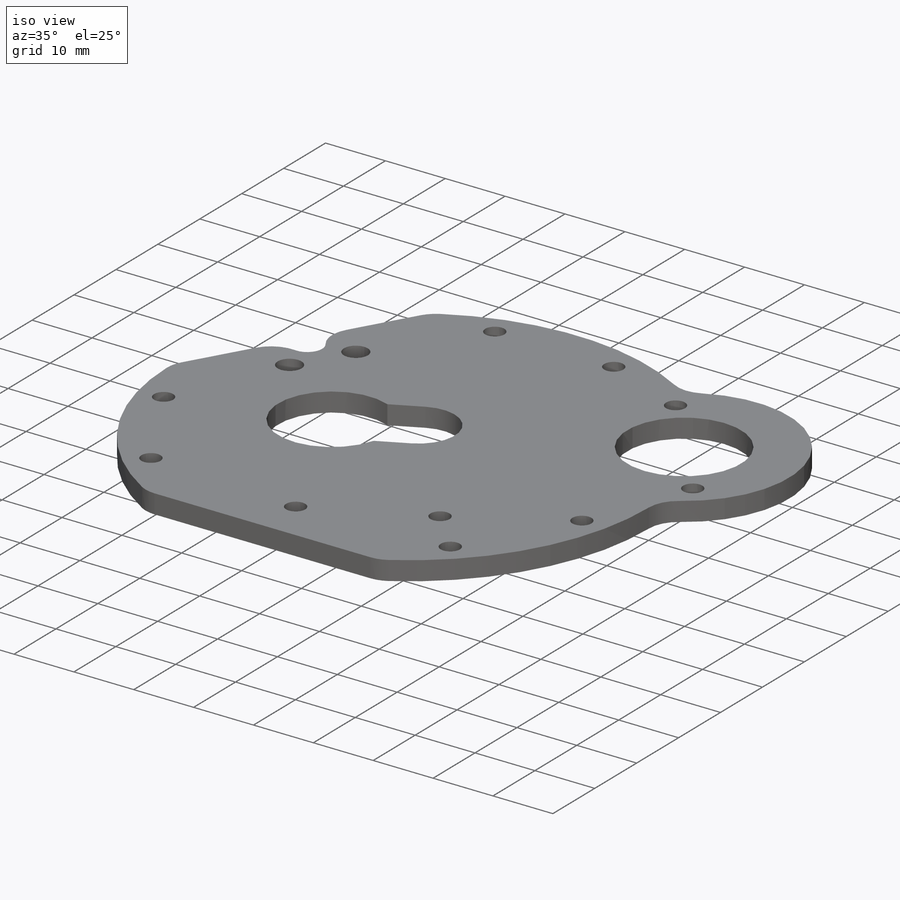
[diagram: iso view]
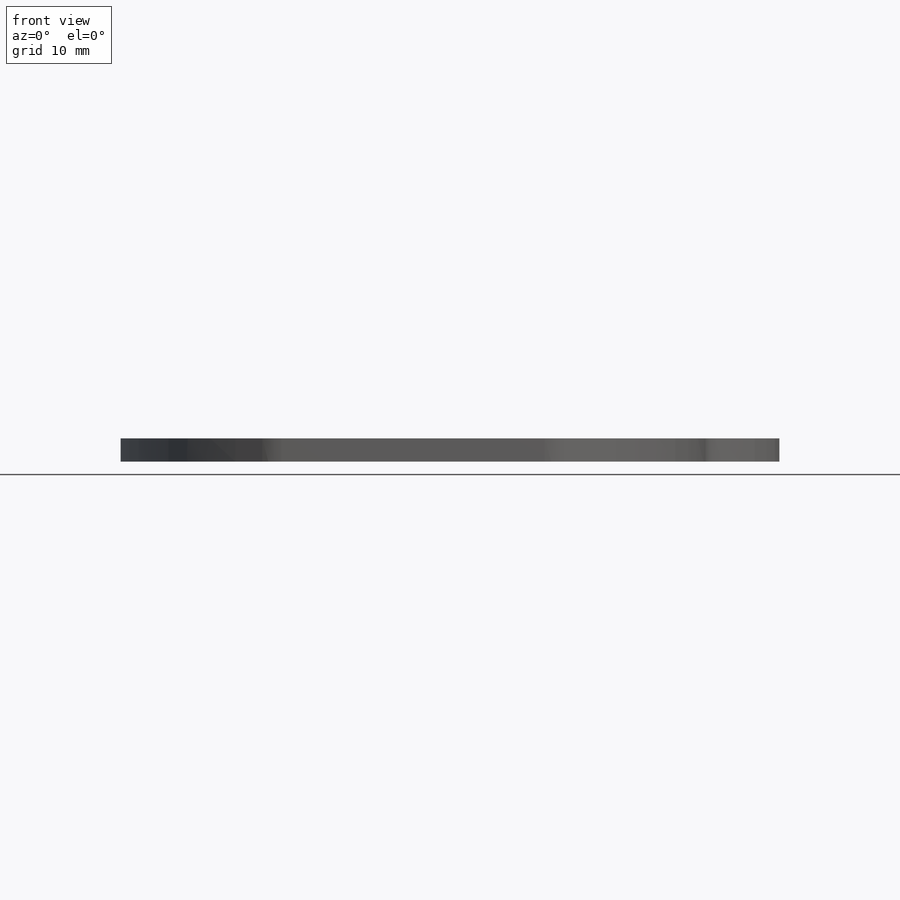
[diagram: front view]
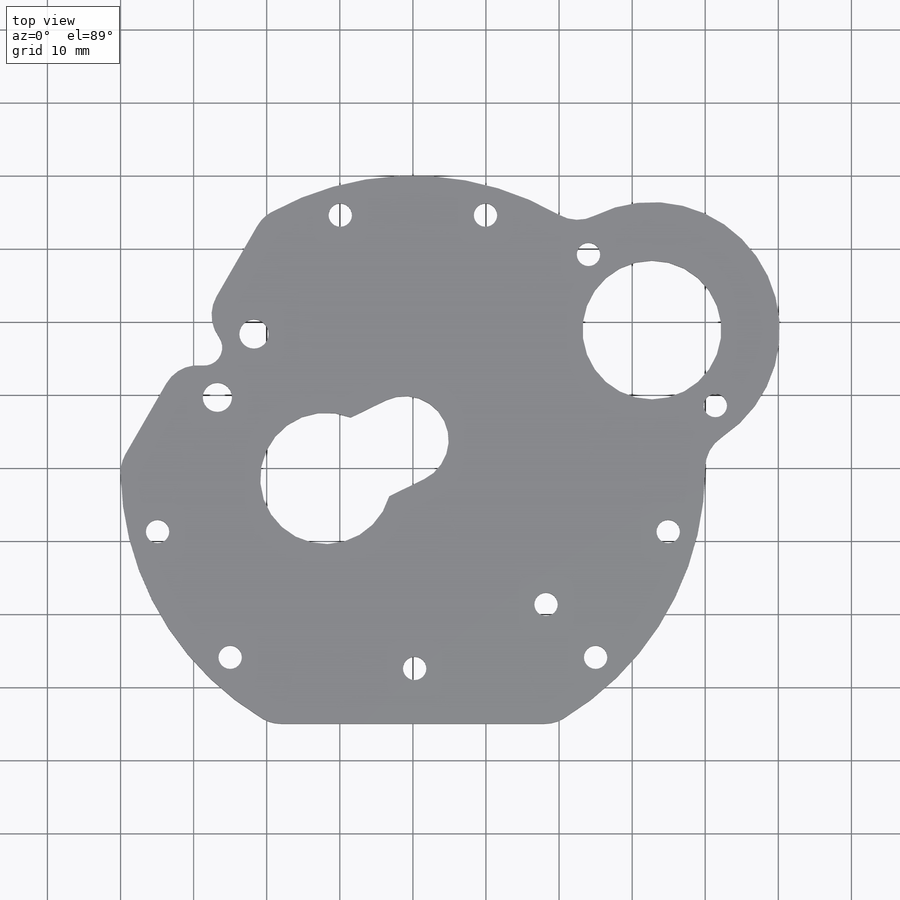
[diagram: top view]
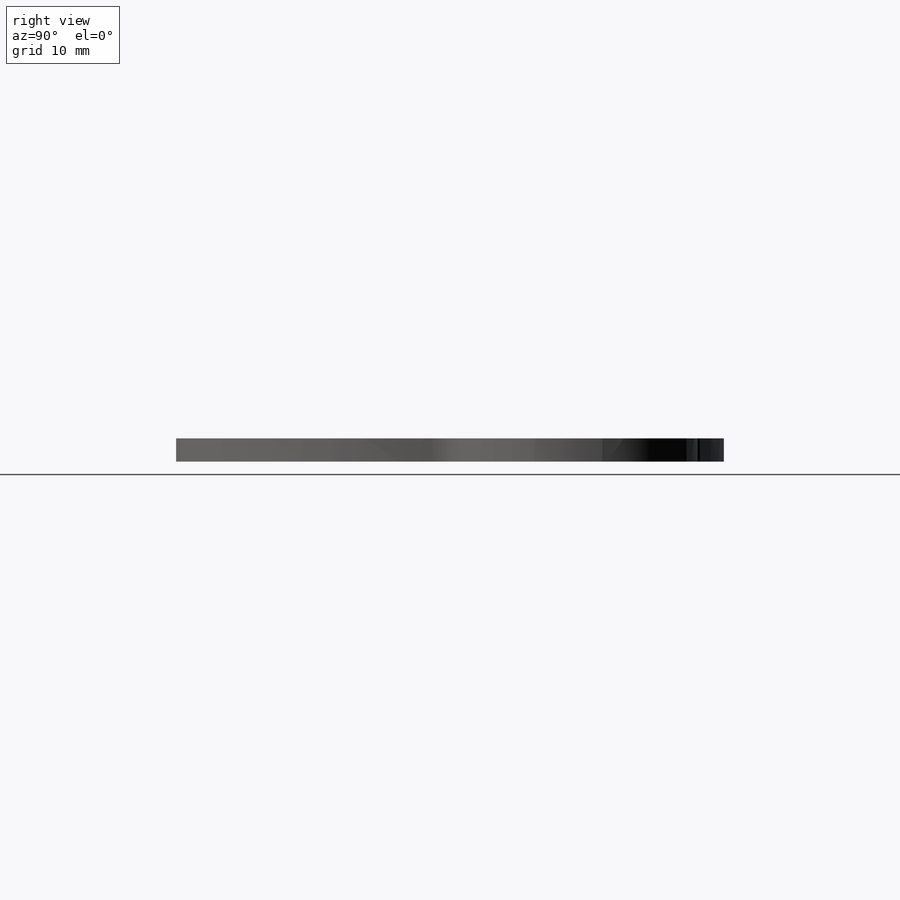
[diagram: right view]
SOLIDWORKS PART (.sldprt)
format: sldprt  version: not decoded by parser v0  size: 306,688 bytes
history: native  units: mm
features: sketch x2, fillet x2, material x1, extrude x1, cut_extrude x1 (+13 scaffold rows collapsed)
feature tree (20):
  scaffold x13  (default folders/planes/origin — collapsed)
  material  "Material <not specified>"
  sketch  "Sketch2"  dims[c1.D1=40.0mm c1.D2=3.2mm c1.D3=19.0mm c1.D4=19.0mm c1.D5=12.0mm c1.D6=18.0mm c1.D7=12.0mm c1.D11=3.2mm c1.D12=~17.822678mm c1.D15=27.0mm c1.D16=12.0mm c1.D18=~72.111026mm c1.D19=3.2mm c2.D11=3.2mm c2.D21=3.2mm c2.D23=40.0mm c2.D6=9.0mm c2.D9=6.0mm c2.D2=50.0mm c2.D3=37.0mm c2.D7=4.0mm c2.D8=~76.055513mm c3.D8=~16.102114deg c3.D9=~22.558255mm c4.D9=28.7deg c4.D10=28.7mm c4.D13=~34.464658mm c5.D13=60.0deg c5.D14=9.5mm c6.D14=40.0deg c6.D16=10.0mm c6.D17=~76.055513mm c7.D17=~16.102114deg c7.D18=4.0mm c7.D20=~76.055513mm c8.D20=60.0deg c8.D8=~76.055513mm c9.D8=60.0deg c9.D20=~25.980762mm c10.D20=120.0deg c10.D11=20.0mm c10.D21=~8.60936mm c10.D22=35.0mm c10.D23=35.0mm c10.D9=12.0mm c10.D17=3.0]
  extrude  "Boss-Extrude1"  Depth=3.175mm
  fillet  "Fillet1"  Radius=5mm
  sketch  "Sketch3"  dims[c1.D1=4.0mm c1.D2=2.5mm c1.D4=4.0mm c1.D3=2.0mm c2.D4=10.0mm c2.D5=5.0mm]
  cut_extrude  "Cut-Extrude1"  [1 undecoded]
  fillet  "Fillet2"  Radius=5mm
decode coverage: 5 of 6 modeling features carry decoded parameters
note: ~ marks probable driven/reference dimensions
note: 1 parameter value undecoded
note: suppression state not decoded; provenance and decode notes live in map.json
